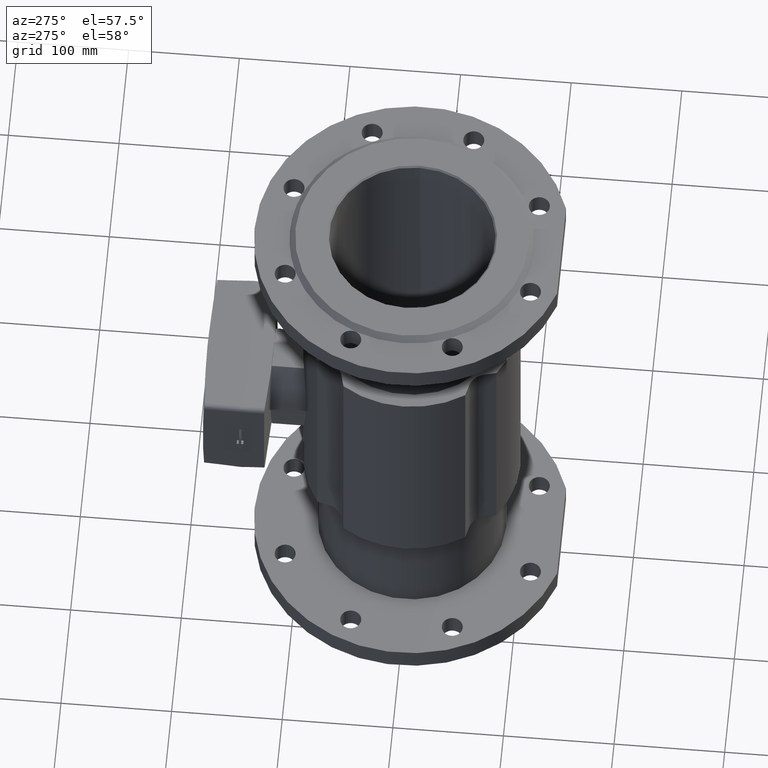
[diagram: clean part render]
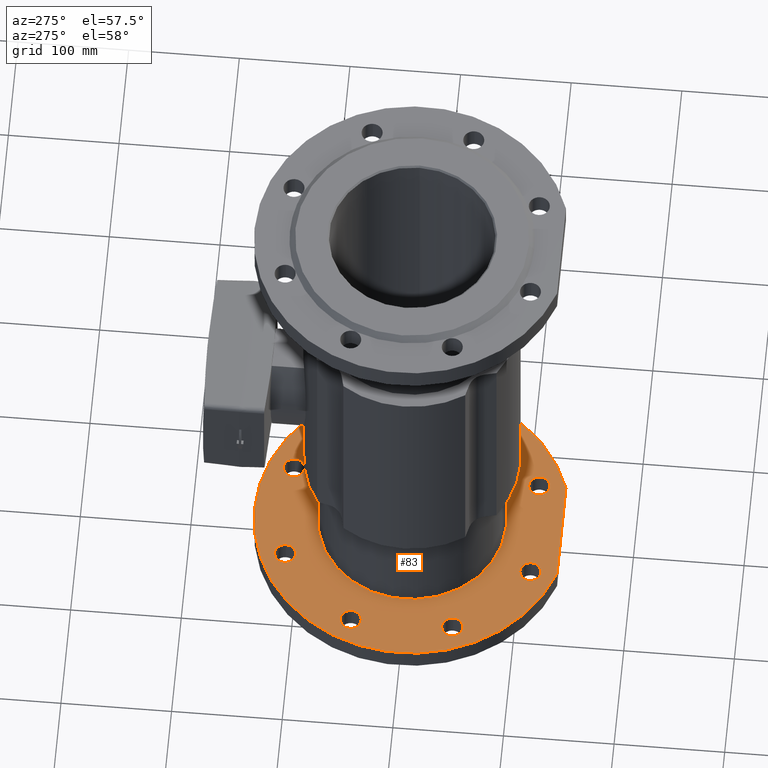
[diagram: same view with one face highlighted and labeled with its STEP entity id]
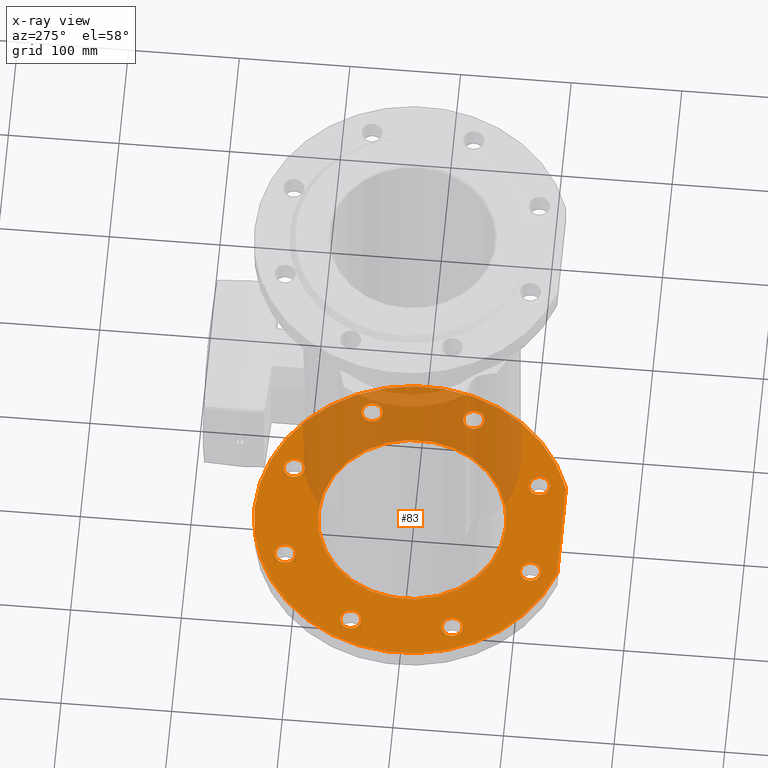
[diagram: x-ray of the same camera — body ghosted, the highlighted face saturated]
A machine part, auxiliary view. The second image highlights one B-rep face of the part: STEP entity #83.
The next image is the same camera in x-ray: the body ghosted, the highlighted face saturated — about 33% of this face is hidden behind the body in this view.
In plain terms, the highlighted planar face has unit normal (0, 0, 1).
Its self-contained STEP definition (entity closure, byte-faithful):
#28 = AXIS2_PLACEMENT_3D ( 'NONE', #4014, #1490, #525 ) ;
#41 = FACE_BOUND ( 'NONE', #479, .T. ) ;
#51 = VERTEX_POINT ( 'NONE', #3855 ) ;
#53 = VERTEX_POINT ( 'NONE', #4861 ) ;
#83 = ADVANCED_FACE ( 'NONE', ( #1800, #1772, #3792, #5835, #1275, #3287, #2794, #277, #41, #6103 ), #2062, .T. ) ;
#95 = CARTESIAN_POINT ( 'NONE',  ( 0.0000000000000000000, -135.0000000000000000, -224.0000000000000284 ) ) ;
#111 = DIRECTION ( 'NONE',  ( 0.0000000000000000000, 2.925615526614575854E-17, 1.000000000000000000 ) ) ;
#158 = CIRCLE ( 'NONE', #1654, 9.499999999999994671 ) ;
#244 = AXIS2_PLACEMENT_3D ( 'NONE', #4414, #789, #6459 ) ;
#266 = DIRECTION ( 'NONE',  ( 0.0000000000000000000, -1.000000000000000000, 0.0000000000000000000 ) ) ;
#277 = FACE_BOUND ( 'NONE', #659, .T. ) ;
#297 = CARTESIAN_POINT ( 'NONE',  ( 36.42201188381144306, 110.8655439013632105, -224.0000000000000284 ) ) ;
#406 = DIRECTION ( 'NONE',  ( 0.0000000000000000000, -1.000000000000000000, 0.0000000000000000000 ) ) ;
#420 = DIRECTION ( 'NONE',  ( 0.0000000000000000000, -1.000000000000000000, 0.0000000000000000000 ) ) ;
#477 = CIRCLE ( 'NONE', #2272, 9.499999999999994671 ) ;
#479 = EDGE_LOOP ( 'NONE', ( #906, #5025 ) ) ;
#525 = DIRECTION ( 'NONE',  ( 0.0000000000000000000, -1.000000000000000000, 0.0000000000000000000 ) ) ;
#532 = DIRECTION ( 'NONE',  ( 0.0000000000000000000, -1.000000000000000000, 0.0000000000000000000 ) ) ;
#560 = DIRECTION ( 'NONE',  ( 0.0000000000000000000, -1.000000000000000000, 0.0000000000000000000 ) ) ;
#567 = EDGE_CURVE ( 'NONE', #2026, #6419, #1310, .T. ) ;
#568 = VERTEX_POINT ( 'NONE', #6196 ) ;
#569 = CIRCLE ( 'NONE', #5234, 9.499999999999994671 ) ;
#659 = EDGE_LOOP ( 'NONE', ( #5336, #2287 ) ) ;
#684 = DIRECTION ( 'NONE',  ( 0.0000000000000000000, 2.925615526614575854E-17, 1.000000000000000000 ) ) ;
#692 = EDGE_CURVE ( 'NONE', #2614, #5806, #4002, .T. ) ;
#699 = AXIS2_PLACEMENT_3D ( 'NONE', #3209, #5245, #3141 ) ;
#714 = DIRECTION ( 'NONE',  ( 0.0000000000000000000, 2.925615526614575854E-17, 1.000000000000000000 ) ) ;
#779 = VERTEX_POINT ( 'NONE', #4070 ) ;
#789 = DIRECTION ( 'NONE',  ( 0.0000000000000000000, 2.925615526614575854E-17, 1.000000000000000000 ) ) ;
#790 = DIRECTION ( 'NONE',  ( 0.0000000000000000000, 2.925615526614575854E-17, 1.000000000000000000 ) ) ;
#794 = ORIENTED_EDGE ( 'NONE', *, *, #5489, .F. ) ;
#906 = ORIENTED_EDGE ( 'NONE', *, *, #2870, .F. ) ;
#910 = CARTESIAN_POINT ( 'NONE',  ( -36.42201188381009302, 110.8655439013546840, -224.0000000000000284 ) ) ;
#937 = ORIENTED_EDGE ( 'NONE', *, *, #1294, .F. ) ;
#968 = EDGE_CURVE ( 'NONE', #1649, #2349, #5811, .T. ) ;
#971 = DIRECTION ( 'NONE',  ( 0.0000000000000000000, 2.925615526614575854E-17, 1.000000000000000000 ) ) ;
#973 = CARTESIAN_POINT ( 'NONE',  ( 45.62071897723644298, -135.0000000000000000, -224.0000000000000284 ) ) ;
#1001 = CARTESIAN_POINT ( 'NONE',  ( 0.0000000000000000000, 84.99999999999997158, -224.0000000000000284 ) ) ;
#1033 = AXIS2_PLACEMENT_3D ( 'NONE', #4587, #4023, #5015 ) ;
#1041 = ORIENTED_EDGE ( 'NONE', *, *, #4279, .F. ) ;
#1208 = ORIENTED_EDGE ( 'NONE', *, *, #6522, .F. ) ;
#1228 = EDGE_CURVE ( 'NONE', #2349, #1649, #4757, .T. ) ;
#1242 = AXIS2_PLACEMENT_3D ( 'NONE', #5933, #1893, #1402 ) ;
#1275 = FACE_OUTER_BOUND ( 'NONE', #2554, .T. ) ;
#1286 = CARTESIAN_POINT ( 'NONE',  ( 55.42201188381146437, 110.8655439013632105, -224.0000000000000284 ) ) ;
#1294 = EDGE_CURVE ( 'NONE', #2005, #4922, #5066, .T. ) ;
#1306 = EDGE_CURVE ( 'NONE', #53, #5458, #3354, .T. ) ;
#1310 = LINE ( 'NONE', #95, #1567 ) ;
#1320 = CARTESIAN_POINT ( 'NONE',  ( 55.42201188383204169, -110.8655439013456032, -224.0000000000000284 ) ) ;
#1371 = CARTESIAN_POINT ( 'NONE',  ( 101.3655439013611073, 45.92201188382560417, -224.0000000000000284 ) ) ;
#1388 = CARTESIAN_POINT ( 'NONE',  ( -101.3655439013477206, 45.92201188380499843, -224.0000000000000284 ) ) ;
#1402 = DIRECTION ( 'NONE',  ( 0.0000000000000000000, -1.000000000000000000, 0.0000000000000000000 ) ) ;
#1490 = DIRECTION ( 'NONE',  ( 0.0000000000000000000, 2.925615526614575854E-17, 1.000000000000000000 ) ) ;
#1501 = EDGE_LOOP ( 'NONE', ( #2788, #2640 ) ) ;
#1566 = ORIENTED_EDGE ( 'NONE', *, *, #567, .F. ) ;
#1567 = VECTOR ( 'NONE', #3322, 1000.000000000000000 ) ;
#1577 = CARTESIAN_POINT ( 'NONE',  ( 0.0000000000000000000, -6.553378779616650900E-15, -224.0000000000000284 ) ) ;
#1581 = EDGE_LOOP ( 'NONE', ( #4495, #937 ) ) ;
#1649 = VERTEX_POINT ( 'NONE', #1388 ) ;
#1654 = AXIS2_PLACEMENT_3D ( 'NONE', #5684, #3606, #2518 ) ;
#1678 = ORIENTED_EDGE ( 'NONE', *, *, #5744, .F. ) ;
#1772 = FACE_BOUND ( 'NONE', #1581, .T. ) ;
#1800 = FACE_BOUND ( 'NONE', #1940, .T. ) ;
#1893 = DIRECTION ( 'NONE',  ( 0.0000000000000000000, 2.925615526614575854E-17, 1.000000000000000000 ) ) ;
#1940 = EDGE_LOOP ( 'NONE', ( #6112, #3149 ) ) ;
#2005 = VERTEX_POINT ( 'NONE', #4965 ) ;
#2026 = VERTEX_POINT ( 'NONE', #973 ) ;
#2062 = PLANE ( 'NONE',  #3240 ) ;
#2155 = CIRCLE ( 'NONE', #5733, 9.499999999999994671 ) ;
#2169 = CARTESIAN_POINT ( 'NONE',  ( -45.92201188381008592, 110.8655439013546840, -224.0000000000000284 ) ) ;
#2177 = AXIS2_PLACEMENT_3D ( 'NONE', #1577, #5601, #4498 ) ;
#2181 = CIRCLE ( 'NONE', #3550, 9.499999999999994671 ) ;
#2233 = CARTESIAN_POINT ( 'NONE',  ( 45.92201188381145016, 110.8655439013632105, -224.0000000000000284 ) ) ;
#2251 = CIRCLE ( 'NONE', #28, 9.500000000000008882 ) ;
#2262 = ORIENTED_EDGE ( 'NONE', *, *, #4907, .F. ) ;
#2272 = AXIS2_PLACEMENT_3D ( 'NONE', #4816, #790, #266 ) ;
#2287 = ORIENTED_EDGE ( 'NONE', *, *, #1228, .F. ) ;
#2349 = VERTEX_POINT ( 'NONE', #5512 ) ;
#2375 = AXIS2_PLACEMENT_3D ( 'NONE', #5483, #2948, #4979 ) ;
#2449 = CARTESIAN_POINT ( 'NONE',  ( -110.8655439013477206, 45.92201188380499843, -224.0000000000000284 ) ) ;
#2518 = DIRECTION ( 'NONE',  ( 0.0000000000000000000, -1.000000000000000000, 0.0000000000000000000 ) ) ;
#2519 = EDGE_CURVE ( 'NONE', #779, #6241, #6013, .T. ) ;
#2554 = EDGE_LOOP ( 'NONE', ( #1566, #3165, #2646 ) ) ;
#2613 = DIRECTION ( 'NONE',  ( 0.0000000000000000000, 2.925615526614575854E-17, 1.000000000000000000 ) ) ;
#2614 = VERTEX_POINT ( 'NONE', #1286 ) ;
#2640 = ORIENTED_EDGE ( 'NONE', *, *, #3454, .T. ) ;
#2646 = ORIENTED_EDGE ( 'NONE', *, *, #4110, .F. ) ;
#2669 = DIRECTION ( 'NONE',  ( 0.0000000000000000000, -1.000000000000000000, 0.0000000000000000000 ) ) ;
#2701 = DIRECTION ( 'NONE',  ( 0.0000000000000000000, 1.000000000000000000, 0.0000000000000000000 ) ) ;
#2711 = CIRCLE ( 'NONE', #2177, 142.4999999999999716 ) ;
#2735 = DIRECTION ( 'NONE',  ( -0.0000000000000000000, -2.925615526614575854E-17, -1.000000000000000000 ) ) ;
#2744 = VERTEX_POINT ( 'NONE', #910 ) ;
#2758 = EDGE_LOOP ( 'NONE', ( #794, #5814 ) ) ;
#2776 = CIRCLE ( 'NONE', #244, 9.499999999999994671 ) ;
#2788 = ORIENTED_EDGE ( 'NONE', *, *, #2519, .T. ) ;
#2794 = FACE_BOUND ( 'NONE', #5233, .T. ) ;
#2870 = EDGE_CURVE ( 'NONE', #2744, #51, #2181, .T. ) ;
#2948 = DIRECTION ( 'NONE',  ( -0.0000000000000000000, -2.925615526614575854E-17, -1.000000000000000000 ) ) ;
#3009 = CIRCLE ( 'NONE', #5788, 9.500000000000008882 ) ;
#3141 = DIRECTION ( 'NONE',  ( 0.0000000000000000000, 1.000000000000000000, 0.0000000000000000000 ) ) ;
#3149 = ORIENTED_EDGE ( 'NONE', *, *, #3284, .F. ) ;
#3151 = DIRECTION ( 'NONE',  ( 0.0000000000000000000, 2.925615526614575854E-17, 1.000000000000000000 ) ) ;
#3159 = EDGE_CURVE ( 'NONE', #5243, #3807, #5460, .T. ) ;
#3165 = ORIENTED_EDGE ( 'NONE', *, *, #4277, .F. ) ;
#3185 = CARTESIAN_POINT ( 'NONE',  ( -45.62071897723643588, -135.0000000000000000, -224.0000000000000284 ) ) ;
#3198 = AXIS2_PLACEMENT_3D ( 'NONE', #5356, #6407, #3925 ) ;
#3209 = CARTESIAN_POINT ( 'NONE',  ( 0.0000000000000000000, -6.553378779616650900E-15, -224.0000000000000284 ) ) ;
#3231 = CARTESIAN_POINT ( 'NONE',  ( 120.3655439013611073, 45.92201188382560417, -224.0000000000000284 ) ) ;
#3240 = AXIS2_PLACEMENT_3D ( 'NONE', #1001, #4034, #4565 ) ;
#3284 = EDGE_CURVE ( 'NONE', #5458, #53, #477, .T. ) ;
#3286 = CARTESIAN_POINT ( 'NONE',  ( -120.3655439013391515, -45.92201188381653765, -224.0000000000000284 ) ) ;
#3287 = FACE_BOUND ( 'NONE', #3642, .T. ) ;
#3297 = CIRCLE ( 'NONE', #6086, 9.499999999999994671 ) ;
#3320 = ORIENTED_EDGE ( 'NONE', *, *, #692, .F. ) ;
#3322 = DIRECTION ( 'NONE',  ( -1.000000000000000000, -0.0000000000000000000, 0.0000000000000000000 ) ) ;
#3331 = VERTEX_POINT ( 'NONE', #4264 ) ;
#3343 = DIRECTION ( 'NONE',  ( 0.0000000000000000000, 2.925615526614575854E-17, 1.000000000000000000 ) ) ;
#3354 = CIRCLE ( 'NONE', #1033, 9.499999999999994671 ) ;
#3409 = CIRCLE ( 'NONE', #3198, 9.499999999999994671 ) ;
#3454 = EDGE_CURVE ( 'NONE', #6241, #779, #5796, .T. ) ;
#3466 = AXIS2_PLACEMENT_3D ( 'NONE', #2449, #6428, #406 ) ;
#3493 = EDGE_CURVE ( 'NONE', #6283, #5569, #158, .T. ) ;
#3506 = CARTESIAN_POINT ( 'NONE',  ( -36.42201188378950150, -110.8655439013541439, -224.0000000000000284 ) ) ;
#3550 = AXIS2_PLACEMENT_3D ( 'NONE', #5353, #684, #2669 ) ;
#3606 = DIRECTION ( 'NONE',  ( 0.0000000000000000000, 2.925615526614575854E-17, 1.000000000000000000 ) ) ;
#3642 = EDGE_LOOP ( 'NONE', ( #3320, #1041 ) ) ;
#3769 = CARTESIAN_POINT ( 'NONE',  ( 101.3655439013696480, -45.92201188379594612, -224.0000000000000284 ) ) ;
#3792 = FACE_BOUND ( 'NONE', #2758, .T. ) ;
#3807 = VERTEX_POINT ( 'NONE', #1320 ) ;
#3855 = CARTESIAN_POINT ( 'NONE',  ( -55.42201188381007881, 110.8655439013546840, -224.0000000000000284 ) ) ;
#3925 = DIRECTION ( 'NONE',  ( 0.0000000000000000000, -1.000000000000000000, 0.0000000000000000000 ) ) ;
#4002 = CIRCLE ( 'NONE', #5486, 9.500000000000008882 ) ;
#4014 = CARTESIAN_POINT ( 'NONE',  ( -45.92201188378950860, -110.8655439013541439, -224.0000000000000284 ) ) ;
#4023 = DIRECTION ( 'NONE',  ( 0.0000000000000000000, 2.925615526614575854E-17, 1.000000000000000000 ) ) ;
#4034 = DIRECTION ( 'NONE',  ( 0.0000000000000000000, 2.925615526614575854E-17, 1.000000000000000000 ) ) ;
#4070 = CARTESIAN_POINT ( 'NONE',  ( 0.0000000000000000000, 84.99999999999997158, -224.0000000000000284 ) ) ;
#4110 = EDGE_CURVE ( 'NONE', #6419, #568, #2711, .T. ) ;
#4246 = DIRECTION ( 'NONE',  ( 0.0000000000000000000, -1.000000000000000000, 0.0000000000000000000 ) ) ;
#4264 = CARTESIAN_POINT ( 'NONE',  ( 120.3655439013696338, -45.92201188379594612, -224.0000000000000284 ) ) ;
#4277 = EDGE_CURVE ( 'NONE', #568, #2026, #5027, .T. ) ;
#4279 = EDGE_CURVE ( 'NONE', #5806, #2614, #3009, .T. ) ;
#4334 = CARTESIAN_POINT ( 'NONE',  ( 1.040949779275249864E-14, -84.99999999999997158, -224.0000000000000284 ) ) ;
#4414 = CARTESIAN_POINT ( 'NONE',  ( 110.8655439013611073, 45.92201188382560417, -224.0000000000000284 ) ) ;
#4495 = ORIENTED_EDGE ( 'NONE', *, *, #6069, .F. ) ;
#4498 = DIRECTION ( 'NONE',  ( 0.0000000000000000000, 1.000000000000000000, 0.0000000000000000000 ) ) ;
#4515 = DIRECTION ( 'NONE',  ( 0.0000000000000000000, 2.925615526614575854E-17, 1.000000000000000000 ) ) ;
#4565 = DIRECTION ( 'NONE',  ( 0.0000000000000000000, -1.000000000000000000, 2.925615526614575854E-17 ) ) ;
#4587 = CARTESIAN_POINT ( 'NONE',  ( -110.8655439013391515, -45.92201188381653765, -224.0000000000000284 ) ) ;
#4660 = CARTESIAN_POINT ( 'NONE',  ( 45.92201188383204169, -110.8655439013456032, -224.0000000000000284 ) ) ;
#4673 = EDGE_LOOP ( 'NONE', ( #2262, #1208 ) ) ;
#4757 = CIRCLE ( 'NONE', #3466, 9.499999999999994671 ) ;
#4816 = CARTESIAN_POINT ( 'NONE',  ( -110.8655439013391515, -45.92201188381653765, -224.0000000000000284 ) ) ;
#4861 = CARTESIAN_POINT ( 'NONE',  ( -101.3655439013391515, -45.92201188381653765, -224.0000000000000284 ) ) ;
#4907 = EDGE_CURVE ( 'NONE', #3331, #5093, #2155, .T. ) ;
#4922 = VERTEX_POINT ( 'NONE', #3506 ) ;
#4963 = CARTESIAN_POINT ( 'NONE',  ( 45.92201188381145016, 110.8655439013632105, -224.0000000000000284 ) ) ;
#4965 = CARTESIAN_POINT ( 'NONE',  ( -55.42201188378950860, -110.8655439013541439, -224.0000000000000284 ) ) ;
#4979 = DIRECTION ( 'NONE',  ( 0.0000000000000000000, 1.000000000000000000, 0.0000000000000000000 ) ) ;
#5015 = DIRECTION ( 'NONE',  ( 0.0000000000000000000, -1.000000000000000000, 0.0000000000000000000 ) ) ;
#5025 = ORIENTED_EDGE ( 'NONE', *, *, #5400, .F. ) ;
#5027 = CIRCLE ( 'NONE', #5882, 142.4999999999999716 ) ;
#5066 = CIRCLE ( 'NONE', #5712, 9.500000000000008882 ) ;
#5093 = VERTEX_POINT ( 'NONE', #3769 ) ;
#5107 = CARTESIAN_POINT ( 'NONE',  ( 110.8655439013696480, -45.92201188379594612, -224.0000000000000284 ) ) ;
#5130 = CARTESIAN_POINT ( 'NONE',  ( 36.42201188383204169, -110.8655439013456032, -224.0000000000000284 ) ) ;
#5199 = DIRECTION ( 'NONE',  ( 0.0000000000000000000, -1.000000000000000000, 0.0000000000000000000 ) ) ;
#5233 = EDGE_LOOP ( 'NONE', ( #6056, #1678 ) ) ;
#5234 = AXIS2_PLACEMENT_3D ( 'NONE', #5107, #4515, #532 ) ;
#5243 = VERTEX_POINT ( 'NONE', #5130 ) ;
#5245 = DIRECTION ( 'NONE',  ( -0.0000000000000000000, -2.925615526614575854E-17, -1.000000000000000000 ) ) ;
#5336 = ORIENTED_EDGE ( 'NONE', *, *, #968, .F. ) ;
#5353 = CARTESIAN_POINT ( 'NONE',  ( -45.92201188381008592, 110.8655439013546840, -224.0000000000000284 ) ) ;
#5356 = CARTESIAN_POINT ( 'NONE',  ( 45.92201188383204169, -110.8655439013456032, -224.0000000000000284 ) ) ;
#5381 = DIRECTION ( 'NONE',  ( 0.0000000000000000000, -1.000000000000000000, 0.0000000000000000000 ) ) ;
#5400 = EDGE_CURVE ( 'NONE', #51, #2744, #3297, .T. ) ;
#5458 = VERTEX_POINT ( 'NONE', #3286 ) ;
#5460 = CIRCLE ( 'NONE', #6538, 9.499999999999994671 ) ;
#5483 = CARTESIAN_POINT ( 'NONE',  ( 0.0000000000000000000, -6.553378779616650900E-15, -224.0000000000000284 ) ) ;
#5486 = AXIS2_PLACEMENT_3D ( 'NONE', #4963, #971, #420 ) ;
#5489 = EDGE_CURVE ( 'NONE', #3807, #5243, #3409, .T. ) ;
#5512 = CARTESIAN_POINT ( 'NONE',  ( -120.3655439013477064, 45.92201188380499843, -224.0000000000000284 ) ) ;
#5569 = VERTEX_POINT ( 'NONE', #1371 ) ;
#5601 = DIRECTION ( 'NONE',  ( -0.0000000000000000000, -2.925615526614575854E-17, -1.000000000000000000 ) ) ;
#5625 = DIRECTION ( 'NONE',  ( 0.0000000000000000000, -1.000000000000000000, 0.0000000000000000000 ) ) ;
#5676 = CARTESIAN_POINT ( 'NONE',  ( 110.8655439013696480, -45.92201188379594612, -224.0000000000000284 ) ) ;
#5684 = CARTESIAN_POINT ( 'NONE',  ( 110.8655439013611073, 45.92201188382560417, -224.0000000000000284 ) ) ;
#5712 = AXIS2_PLACEMENT_3D ( 'NONE', #5886, #3343, #5381 ) ;
#5733 = AXIS2_PLACEMENT_3D ( 'NONE', #5676, #2613, #560 ) ;
#5744 = EDGE_CURVE ( 'NONE', #5569, #6283, #2776, .T. ) ;
#5788 = AXIS2_PLACEMENT_3D ( 'NONE', #2233, #111, #4246 ) ;
#5796 = CIRCLE ( 'NONE', #2375, 84.99999999999997158 ) ;
#5806 = VERTEX_POINT ( 'NONE', #297 ) ;
#5811 = CIRCLE ( 'NONE', #1242, 9.499999999999994671 ) ;
#5814 = ORIENTED_EDGE ( 'NONE', *, *, #3159, .F. ) ;
#5835 = FACE_BOUND ( 'NONE', #4673, .T. ) ;
#5882 = AXIS2_PLACEMENT_3D ( 'NONE', #6217, #2735, #2701 ) ;
#5886 = CARTESIAN_POINT ( 'NONE',  ( -45.92201188378950860, -110.8655439013541439, -224.0000000000000284 ) ) ;
#5933 = CARTESIAN_POINT ( 'NONE',  ( -110.8655439013477206, 45.92201188380499843, -224.0000000000000284 ) ) ;
#6013 = CIRCLE ( 'NONE', #699, 84.99999999999997158 ) ;
#6056 = ORIENTED_EDGE ( 'NONE', *, *, #3493, .F. ) ;
#6069 = EDGE_CURVE ( 'NONE', #4922, #2005, #2251, .T. ) ;
#6086 = AXIS2_PLACEMENT_3D ( 'NONE', #2169, #714, #5199 ) ;
#6103 = FACE_BOUND ( 'NONE', #1501, .T. ) ;
#6112 = ORIENTED_EDGE ( 'NONE', *, *, #1306, .F. ) ;
#6196 = CARTESIAN_POINT ( 'NONE',  ( 0.0000000000000000000, 142.4999999999999716, -224.0000000000000284 ) ) ;
#6217 = CARTESIAN_POINT ( 'NONE',  ( 0.0000000000000000000, -6.553378779616650900E-15, -224.0000000000000284 ) ) ;
#6241 = VERTEX_POINT ( 'NONE', #4334 ) ;
#6283 = VERTEX_POINT ( 'NONE', #3231 ) ;
#6407 = DIRECTION ( 'NONE',  ( 0.0000000000000000000, 2.925615526614575854E-17, 1.000000000000000000 ) ) ;
#6419 = VERTEX_POINT ( 'NONE', #3185 ) ;
#6428 = DIRECTION ( 'NONE',  ( 0.0000000000000000000, 2.925615526614575854E-17, 1.000000000000000000 ) ) ;
#6459 = DIRECTION ( 'NONE',  ( 0.0000000000000000000, -1.000000000000000000, 0.0000000000000000000 ) ) ;
#6522 = EDGE_CURVE ( 'NONE', #5093, #3331, #569, .T. ) ;
#6538 = AXIS2_PLACEMENT_3D ( 'NONE', #4660, #3151, #5625 ) ;